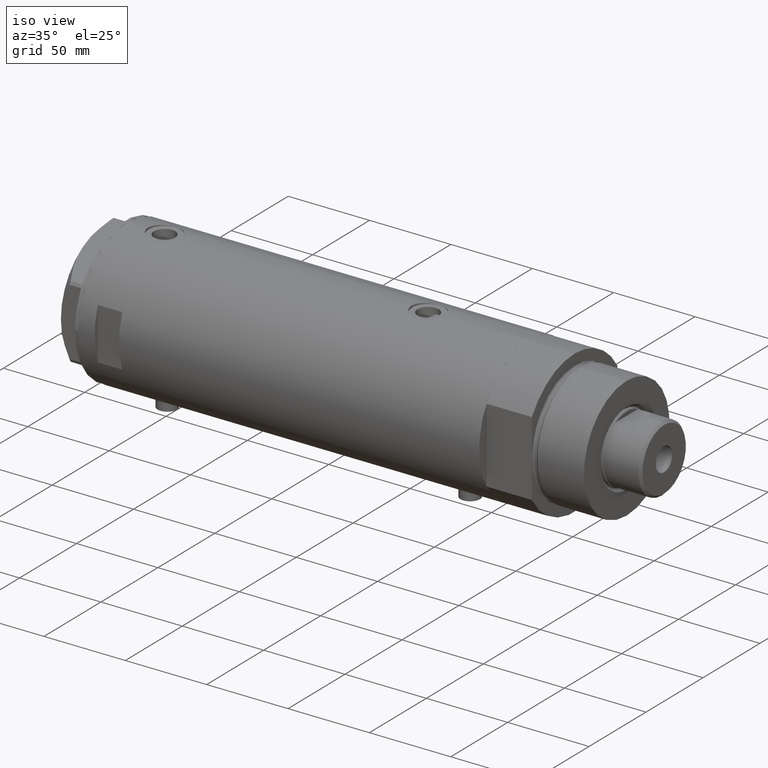
[diagram: clean part render]
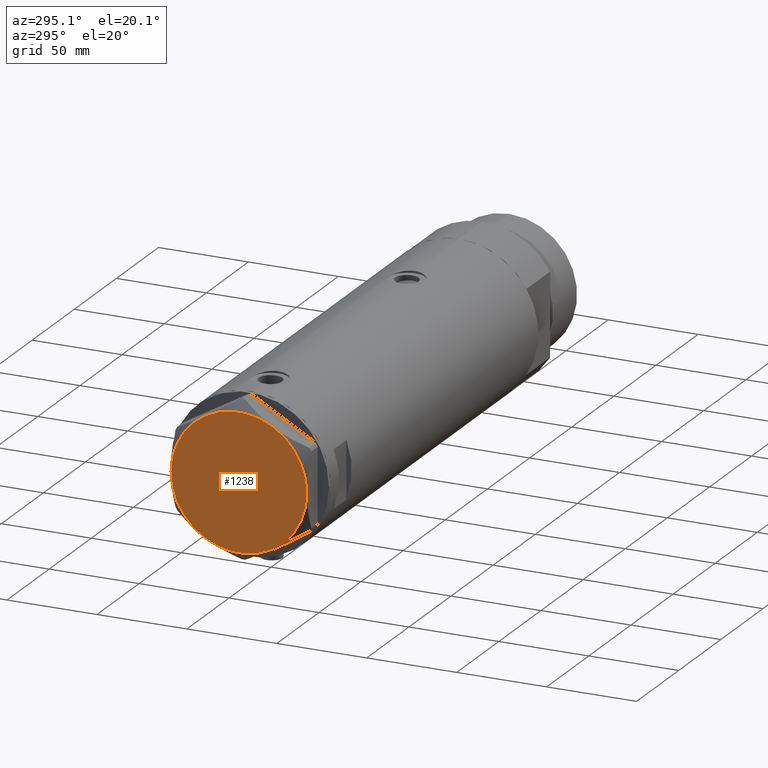
[diagram: tour spotlight — one face highlighted and labeled with its STEP entity id]
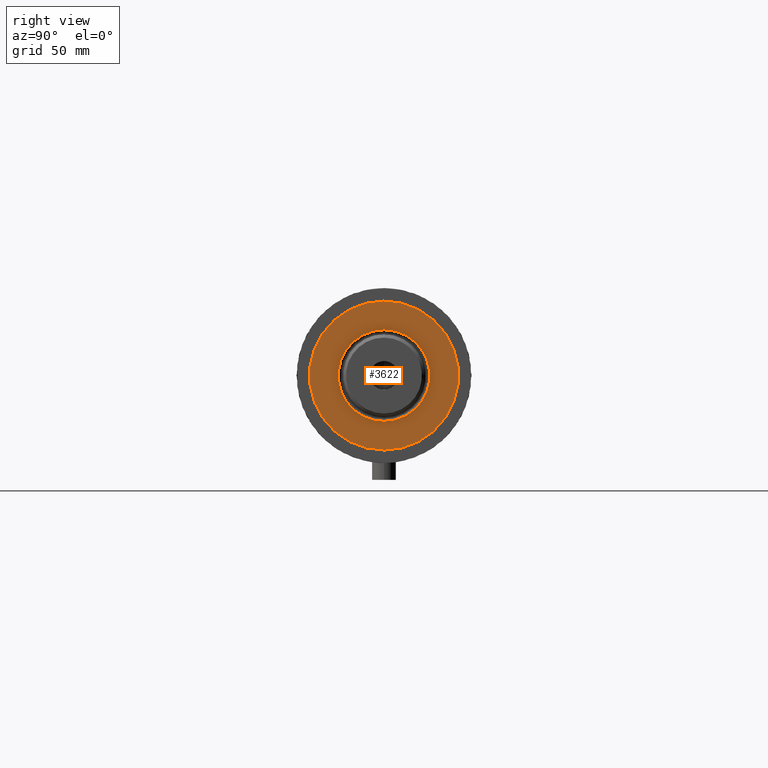
[diagram: tour spotlight — one face highlighted and labeled with its STEP entity id]
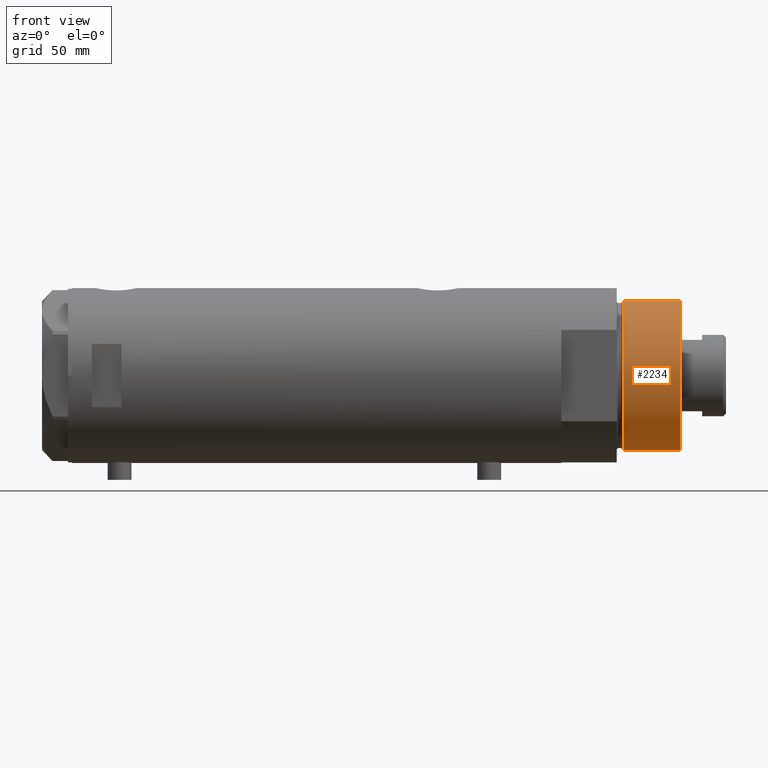
[diagram: tour spotlight — one face highlighted and labeled with its STEP entity id]
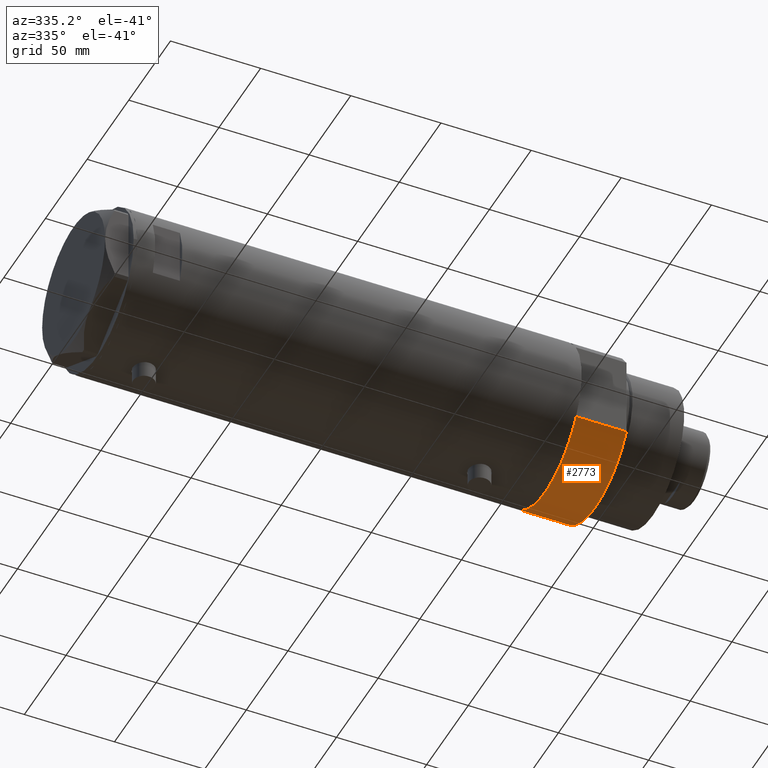
[diagram: tour spotlight — one face highlighted and labeled with its STEP entity id]
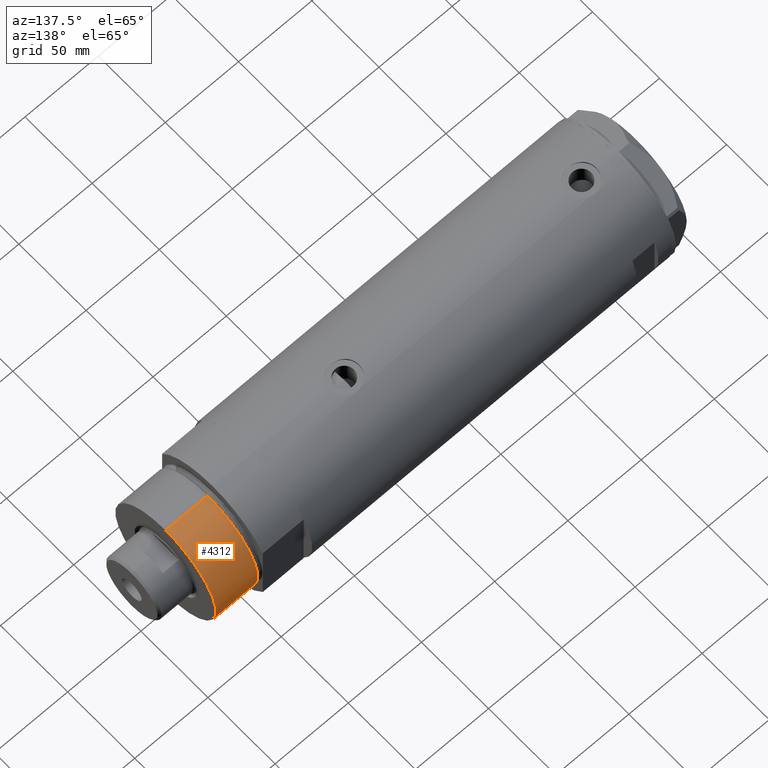
[diagram: tour spotlight — one face highlighted and labeled with its STEP entity id]
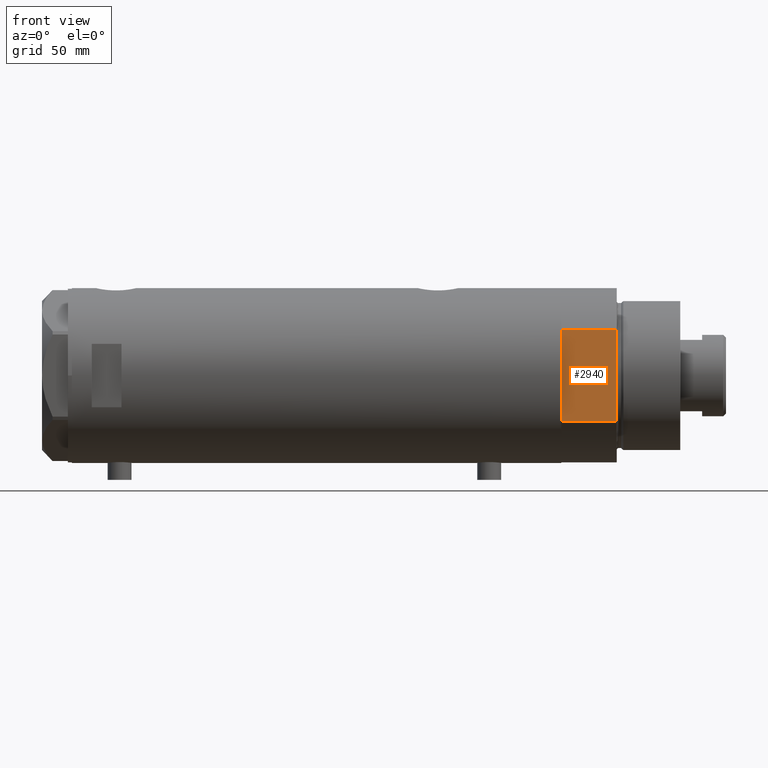
[diagram: tour spotlight — one face highlighted and labeled with its STEP entity id]
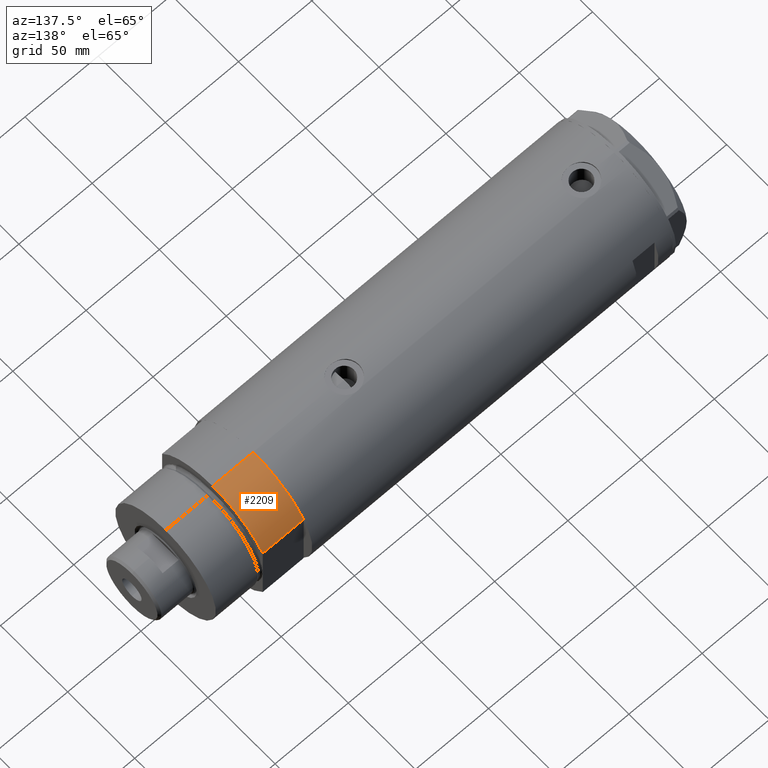
[diagram: tour spotlight — one face highlighted and labeled with its STEP entity id]
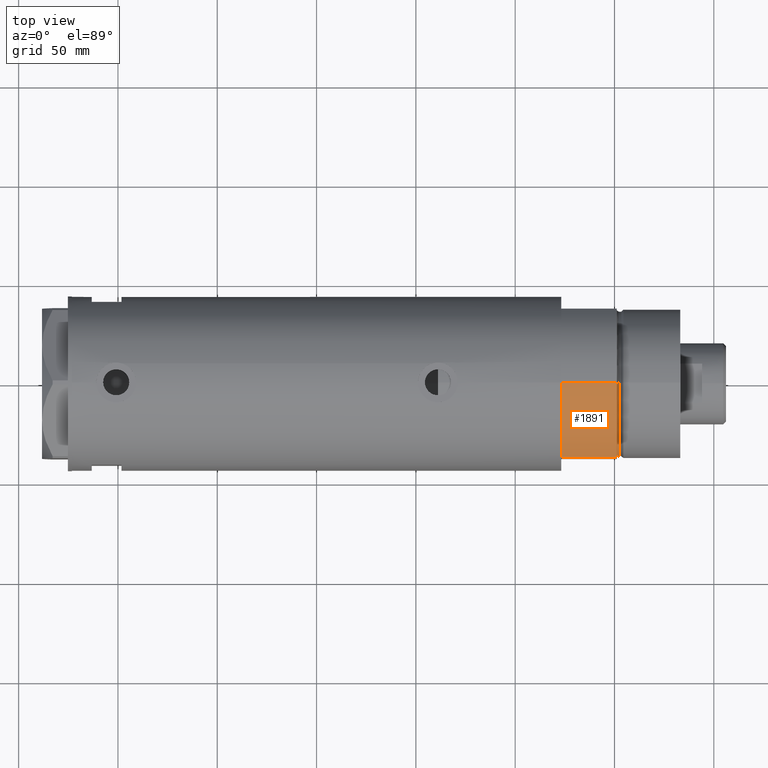
[diagram: tour spotlight — one face highlighted and labeled with its STEP entity id]
A machine part: a face-by-face anatomy tour. The part has 121 B-rep faces; the first image is the clean iso view, then the 8 largest visible faces are spotlighted one at a time (largest first), each with its STEP entity span.

Face 1 — auxiliary view, entity #1238. In plain terms, the highlighted planar face has unit normal (-1, -0, 0).
Definition (entity closure, byte-faithful):
#175 = DIRECTION ( 'NONE',  ( 1.000000000000000000, 0.000000000000000000, 0.000000000000000000 ) ) ;
#199 = CARTESIAN_POINT ( 'NONE',  ( 18.87499999999998579, -32.69245899286256218, 13.00000000000000000 ) ) ;
#270 = CIRCLE ( 'NONE', #1726, 37.75000000000000000 ) ;
#294 = ORIENTED_EDGE ( 'NONE', *, *, #2587, .T. ) ;
#336 = CARTESIAN_POINT ( 'NONE',  ( 0.000000000000000000, 0.000000000000000000, 13.00000000000000000 ) ) ;
#459 = CARTESIAN_POINT ( 'NONE',  ( 0.000000000000000000, 0.000000000000000000, 13.00000000000000000 ) ) ;
#507 = VERTEX_POINT ( 'NONE', #4430 ) ;
#514 = EDGE_CURVE ( 'NONE', #1785, #3849, #270, .T. ) ;
#608 = CARTESIAN_POINT ( 'NONE',  ( -18.87499999999999645, 32.69245899286256218, 13.00000000000000000 ) ) ;
#710 = PLANE ( 'NONE',  #3235 ) ;
#1031 = CARTESIAN_POINT ( 'NONE',  ( 0.000000000000000000, 0.000000000000000000, 13.00000000000000000 ) ) ;
#1131 = FACE_OUTER_BOUND ( 'NONE', #1402, .T. ) ;
#1142 = CARTESIAN_POINT ( 'NONE',  ( 0.000000000000000000, 0.000000000000000000, 13.00000000000000000 ) ) ;
#1238 = ADVANCED_FACE ( 'NONE', ( #1131 ), #710, .T. ) ;
#1274 = CARTESIAN_POINT ( 'NONE',  ( 0.000000000000000000, 0.000000000000000000, 13.00000000000000000 ) ) ;
#1393 = AXIS2_PLACEMENT_3D ( 'NONE', #459, #2976, #4344 ) ;
#1402 = EDGE_LOOP ( 'NONE', ( #2855, #294, #2966, #2161, #2669, #3509 ) ) ;
#1549 = AXIS2_PLACEMENT_3D ( 'NONE', #1031, #3847, #1577 ) ;
#1577 = DIRECTION ( 'NONE',  ( 1.000000000000000000, 0.000000000000000000, 0.000000000000000000 ) ) ;
#1697 = VERTEX_POINT ( 'NONE', #2648 ) ;
#1726 = AXIS2_PLACEMENT_3D ( 'NONE', #1274, #2689, #4082 ) ;
#1732 = DIRECTION ( 'NONE',  ( 1.000000000000000000, 0.000000000000000000, -0.000000000000000000 ) ) ;
#1769 = EDGE_CURVE ( 'NONE', #3849, #1821, #4258, .T. ) ;
#1785 = VERTEX_POINT ( 'NONE', #3008 ) ;
#1808 = DIRECTION ( 'NONE',  ( 0.000000000000000000, 0.000000000000000000, 1.000000000000000000 ) ) ;
#1821 = VERTEX_POINT ( 'NONE', #4514 ) ;
#2123 = CIRCLE ( 'NONE', #3820, 37.75000000000000000 ) ;
#2161 = ORIENTED_EDGE ( 'NONE', *, *, #1769, .T. ) ;
#2433 = AXIS2_PLACEMENT_3D ( 'NONE', #3705, #3057, #3358 ) ;
#2575 = AXIS2_PLACEMENT_3D ( 'NONE', #4016, #4095, #3353 ) ;
#2587 = EDGE_CURVE ( 'NONE', #1697, #1785, #2123, .T. ) ;
#2648 = CARTESIAN_POINT ( 'NONE',  ( 37.75000000000000711, 1.802777518484591547E-14, 13.00000000000000000 ) ) ;
#2669 = ORIENTED_EDGE ( 'NONE', *, *, #3780, .T. ) ;
#2689 = DIRECTION ( 'NONE',  ( 0.000000000000000000, 0.000000000000000000, 1.000000000000000000 ) ) ;
#2855 = ORIENTED_EDGE ( 'NONE', *, *, #3861, .T. ) ;
#2966 = ORIENTED_EDGE ( 'NONE', *, *, #514, .T. ) ;
#2976 = DIRECTION ( 'NONE',  ( 0.000000000000000000, 0.000000000000000000, 1.000000000000000000 ) ) ;
#3008 = CARTESIAN_POINT ( 'NONE',  ( 18.87500000000000000, 32.69245899286255508, 13.00000000000000000 ) ) ;
#3057 = DIRECTION ( 'NONE',  ( 0.000000000000000000, 0.000000000000000000, 1.000000000000000000 ) ) ;
#3235 = AXIS2_PLACEMENT_3D ( 'NONE', #336, #1808, #1732 ) ;
#3353 = DIRECTION ( 'NONE',  ( 1.000000000000000000, 0.000000000000000000, 0.000000000000000000 ) ) ;
#3358 = DIRECTION ( 'NONE',  ( 1.000000000000000000, 0.000000000000000000, 0.000000000000000000 ) ) ;
#3509 = ORIENTED_EDGE ( 'NONE', *, *, #4340, .T. ) ;
#3617 = CIRCLE ( 'NONE', #2433, 37.75000000000000000 ) ;
#3705 = CARTESIAN_POINT ( 'NONE',  ( 0.000000000000000000, 0.000000000000000000, 13.00000000000000000 ) ) ;
#3755 = CIRCLE ( 'NONE', #1393, 37.75000000000000000 ) ;
#3780 = EDGE_CURVE ( 'NONE', #1821, #507, #3755, .T. ) ;
#3820 = AXIS2_PLACEMENT_3D ( 'NONE', #1142, #4377, #175 ) ;
#3847 = DIRECTION ( 'NONE',  ( 0.000000000000000000, 0.000000000000000000, 1.000000000000000000 ) ) ;
#3849 = VERTEX_POINT ( 'NONE', #608 ) ;
#3861 = EDGE_CURVE ( 'NONE', #3875, #1697, #3617, .T. ) ;
#3875 = VERTEX_POINT ( 'NONE', #199 ) ;
#3910 = CIRCLE ( 'NONE', #1549, 37.75000000000000000 ) ;
#4016 = CARTESIAN_POINT ( 'NONE',  ( 0.000000000000000000, 0.000000000000000000, 13.00000000000000000 ) ) ;
#4082 = DIRECTION ( 'NONE',  ( 1.000000000000000000, 0.000000000000000000, 0.000000000000000000 ) ) ;
#4095 = DIRECTION ( 'NONE',  ( 0.000000000000000000, 0.000000000000000000, 1.000000000000000000 ) ) ;
#4258 = CIRCLE ( 'NONE', #2575, 37.75000000000000000 ) ;
#4340 = EDGE_CURVE ( 'NONE', #507, #3875, #3910, .T. ) ;
#4344 = DIRECTION ( 'NONE',  ( 1.000000000000000000, 0.000000000000000000, 0.000000000000000000 ) ) ;
#4377 = DIRECTION ( 'NONE',  ( 0.000000000000000000, 0.000000000000000000, 1.000000000000000000 ) ) ;
#4430 = CARTESIAN_POINT ( 'NONE',  ( -18.87499999999999645, -32.69245899286255508, 13.00000000000000000 ) ) ;
#4514 = CARTESIAN_POINT ( 'NONE',  ( -37.75000000000000000, -1.201851678989727067E-14, 13.00000000000000000 ) ) ;

Face 2 — right view, entity #3622. In plain terms, the highlighted planar face has unit normal (1, 0, -0).
Definition (entity closure, byte-faithful):
#60 = DIRECTION ( 'NONE',  ( 1.000000000000000000, 0.000000000000000000, 0.000000000000000000 ) ) ;
#185 = CARTESIAN_POINT ( 'NONE',  ( 0.000000000000000000, 0.000000000000000000, 59.89999999999999147 ) ) ;
#544 = EDGE_CURVE ( 'NONE', #2652, #3191, #2401, .T. ) ;
#680 = CARTESIAN_POINT ( 'NONE',  ( -23.05000000000002913, 2.822810872034651791E-15, 59.89999999999999147 ) ) ;
#885 = CARTESIAN_POINT ( 'NONE',  ( 37.50000000000000711, 4.592425496802575156E-15, 59.89999999999999147 ) ) ;
#1409 = EDGE_LOOP ( 'NONE', ( #3630, #2248 ) ) ;
#1469 = AXIS2_PLACEMENT_3D ( 'NONE', #185, #3198, #60 ) ;
#1721 = ORIENTED_EDGE ( 'NONE', *, *, #2716, .T. ) ;
#2027 = DIRECTION ( 'NONE',  ( -0.000000000000000000, -0.000000000000000000, -1.000000000000000000 ) ) ;
#2055 = CIRCLE ( 'NONE', #4114, 23.05000000000002913 ) ;
#2059 = AXIS2_PLACEMENT_3D ( 'NONE', #4432, #3037, #3789 ) ;
#2062 = DIRECTION ( 'NONE',  ( 0.000000000000000000, 0.000000000000000000, 1.000000000000000000 ) ) ;
#2248 = ORIENTED_EDGE ( 'NONE', *, *, #544, .T. ) ;
#2309 = VERTEX_POINT ( 'NONE', #680 ) ;
#2342 = DIRECTION ( 'NONE',  ( 1.000000000000000000, 0.000000000000000000, 0.000000000000000000 ) ) ;
#2401 = CIRCLE ( 'NONE', #4022, 37.50000000000000711 ) ;
#2468 = PLANE ( 'NONE',  #4479 ) ;
#2472 = CARTESIAN_POINT ( 'NONE',  ( -37.50000000000000711, 0.000000000000000000, 59.89999999999999147 ) ) ;
#2652 = VERTEX_POINT ( 'NONE', #885 ) ;
#2716 = EDGE_CURVE ( 'NONE', #3571, #2309, #3672, .T. ) ;
#2732 = DIRECTION ( 'NONE',  ( 1.000000000000000000, 0.000000000000000000, 0.000000000000000000 ) ) ;
#2752 = CARTESIAN_POINT ( 'NONE',  ( 0.000000000000000000, 0.000000000000000000, 59.89999999999999147 ) ) ;
#3037 = DIRECTION ( 'NONE',  ( 0.000000000000000000, 0.000000000000000000, 1.000000000000000000 ) ) ;
#3120 = EDGE_LOOP ( 'NONE', ( #1721, #3686 ) ) ;
#3183 = CARTESIAN_POINT ( 'NONE',  ( 0.000000000000000000, 0.000000000000000000, 59.89999999999999147 ) ) ;
#3191 = VERTEX_POINT ( 'NONE', #2472 ) ;
#3198 = DIRECTION ( 'NONE',  ( -0.000000000000000000, -0.000000000000000000, -1.000000000000000000 ) ) ;
#3571 = VERTEX_POINT ( 'NONE', #3936 ) ;
#3622 = ADVANCED_FACE ( 'NONE', ( #3917, #4549 ), #2468, .T. ) ;
#3630 = ORIENTED_EDGE ( 'NONE', *, *, #4505, .T. ) ;
#3672 = CIRCLE ( 'NONE', #1469, 23.05000000000002913 ) ;
#3686 = ORIENTED_EDGE ( 'NONE', *, *, #3929, .T. ) ;
#3789 = DIRECTION ( 'NONE',  ( 1.000000000000000000, 0.000000000000000000, 0.000000000000000000 ) ) ;
#3834 = CIRCLE ( 'NONE', #2059, 37.50000000000000711 ) ;
#3879 = DIRECTION ( 'NONE',  ( 0.000000000000000000, 0.000000000000000000, 1.000000000000000000 ) ) ;
#3917 = FACE_BOUND ( 'NONE', #3120, .T. ) ;
#3929 = EDGE_CURVE ( 'NONE', #2309, #3571, #2055, .T. ) ;
#3936 = CARTESIAN_POINT ( 'NONE',  ( 23.05000000000002913, 0.000000000000000000, 59.89999999999999147 ) ) ;
#4022 = AXIS2_PLACEMENT_3D ( 'NONE', #2752, #3879, #2732 ) ;
#4114 = AXIS2_PLACEMENT_3D ( 'NONE', #4410, #2027, #2342 ) ;
#4181 = DIRECTION ( 'NONE',  ( 1.000000000000000000, 0.000000000000000000, -0.000000000000000000 ) ) ;
#4410 = CARTESIAN_POINT ( 'NONE',  ( 0.000000000000000000, 0.000000000000000000, 59.89999999999999147 ) ) ;
#4432 = CARTESIAN_POINT ( 'NONE',  ( 0.000000000000000000, 0.000000000000000000, 59.89999999999999147 ) ) ;
#4479 = AXIS2_PLACEMENT_3D ( 'NONE', #3183, #2062, #4181 ) ;
#4505 = EDGE_CURVE ( 'NONE', #3191, #2652, #3834, .T. ) ;
#4549 = FACE_OUTER_BOUND ( 'NONE', #1409, .T. ) ;

Face 3 — front view, entity #2234. In plain terms, the highlighted cylindrical surface (partial cylindrical patch) has radius 37.5 mm, axis along (-1, -0, 0).
Definition (entity closure, byte-faithful):
#126 = LINE ( 'NONE', #1588, #581 ) ;
#324 = ORIENTED_EDGE ( 'NONE', *, *, #1192, .T. ) ;
#352 = CIRCLE ( 'NONE', #1662, 37.50000000000000711 ) ;
#548 = CARTESIAN_POINT ( 'NONE',  ( 0.000000000000000000, 0.000000000000000000, 59.89999999999999147 ) ) ;
#581 = VECTOR ( 'NONE', #2642, 1000.000000000000000 ) ;
#761 = DIRECTION ( 'NONE',  ( -0.000000000000000000, -0.000000000000000000, -1.000000000000000000 ) ) ;
#878 = EDGE_LOOP ( 'NONE', ( #2176, #1196, #324, #2381 ) ) ;
#885 = CARTESIAN_POINT ( 'NONE',  ( 37.50000000000000711, 4.592425496802575156E-15, 59.89999999999999147 ) ) ;
#975 = DIRECTION ( 'NONE',  ( -1.000000000000000000, 0.000000000000000000, 0.000000000000000000 ) ) ;
#1192 = EDGE_CURVE ( 'NONE', #3191, #2895, #4303, .T. ) ;
#1196 = ORIENTED_EDGE ( 'NONE', *, *, #4505, .F. ) ;
#1580 = FACE_OUTER_BOUND ( 'NONE', #878, .T. ) ;
#1588 = CARTESIAN_POINT ( 'NONE',  ( 37.50000000000000711, 4.592425496802575156E-15, 59.89999999999999147 ) ) ;
#1613 = DIRECTION ( 'NONE',  ( 1.000000000000000000, 0.000000000000000000, 0.000000000000000000 ) ) ;
#1662 = AXIS2_PLACEMENT_3D ( 'NONE', #2272, #4404, #1613 ) ;
#1693 = VERTEX_POINT ( 'NONE', #3698 ) ;
#1793 = EDGE_CURVE ( 'NONE', #2895, #1693, #352, .T. ) ;
#1898 = AXIS2_PLACEMENT_3D ( 'NONE', #548, #3362, #975 ) ;
#1971 = CARTESIAN_POINT ( 'NONE',  ( -37.50000000000000711, 0.000000000000000000, 31.27384048104054415 ) ) ;
#2059 = AXIS2_PLACEMENT_3D ( 'NONE', #4432, #3037, #3789 ) ;
#2176 = ORIENTED_EDGE ( 'NONE', *, *, #3081, .F. ) ;
#2234 = ADVANCED_FACE ( 'NONE', ( #1580 ), #2994, .T. ) ;
#2272 = CARTESIAN_POINT ( 'NONE',  ( 0.000000000000000000, 0.000000000000000000, 31.27384048104054415 ) ) ;
#2381 = ORIENTED_EDGE ( 'NONE', *, *, #1793, .T. ) ;
#2472 = CARTESIAN_POINT ( 'NONE',  ( -37.50000000000000711, 0.000000000000000000, 59.89999999999999147 ) ) ;
#2642 = DIRECTION ( 'NONE',  ( -0.000000000000000000, -0.000000000000000000, -1.000000000000000000 ) ) ;
#2652 = VERTEX_POINT ( 'NONE', #885 ) ;
#2895 = VERTEX_POINT ( 'NONE', #1971 ) ;
#2994 = CYLINDRICAL_SURFACE ( 'NONE', #1898, 37.50000000000000711 ) ;
#3037 = DIRECTION ( 'NONE',  ( 0.000000000000000000, 0.000000000000000000, 1.000000000000000000 ) ) ;
#3081 = EDGE_CURVE ( 'NONE', #2652, #1693, #126, .T. ) ;
#3191 = VERTEX_POINT ( 'NONE', #2472 ) ;
#3362 = DIRECTION ( 'NONE',  ( -0.000000000000000000, -0.000000000000000000, -1.000000000000000000 ) ) ;
#3598 = CARTESIAN_POINT ( 'NONE',  ( -37.50000000000000711, 0.000000000000000000, 59.89999999999999147 ) ) ;
#3698 = CARTESIAN_POINT ( 'NONE',  ( 37.50000000000000711, 4.592425496802575156E-15, 31.27384048104054415 ) ) ;
#3789 = DIRECTION ( 'NONE',  ( 1.000000000000000000, 0.000000000000000000, 0.000000000000000000 ) ) ;
#3834 = CIRCLE ( 'NONE', #2059, 37.50000000000000711 ) ;
#3880 = VECTOR ( 'NONE', #761, 1000.000000000000000 ) ;
#4303 = LINE ( 'NONE', #3598, #3880 ) ;
#4404 = DIRECTION ( 'NONE',  ( -0.000000000000000000, -0.000000000000000000, 1.000000000000000000 ) ) ;
#4432 = CARTESIAN_POINT ( 'NONE',  ( 0.000000000000000000, 0.000000000000000000, 59.89999999999999147 ) ) ;
#4505 = EDGE_CURVE ( 'NONE', #3191, #2652, #3834, .T. ) ;

Face 4 — auxiliary view, entity #2773. In plain terms, the highlighted cylindrical surface (partial cylindrical patch) has radius 44 mm, axis along (-1, -0, 0).
Definition (entity closure, byte-faithful):
#51 = ORIENTED_EDGE ( 'NONE', *, *, #2547, .T. ) ;
#78 = AXIS2_PLACEMENT_3D ( 'NONE', #3677, #2151, #2552 ) ;
#169 = CARTESIAN_POINT ( 'NONE',  ( 0.000000000000000000, 0.000000000000000000, 27.89999999999999858 ) ) ;
#267 = VERTEX_POINT ( 'NONE', #2831 ) ;
#506 = CARTESIAN_POINT ( 'NONE',  ( 23.01629857296780557, 37.50000000000000000, 0.000000000000000000 ) ) ;
#572 = VECTOR ( 'NONE', #1906, 1000.000000000000000 ) ;
#582 = VECTOR ( 'NONE', #4392, 1000.000000000000000 ) ;
#689 = DIRECTION ( 'NONE',  ( 0.000000000000000000, 0.000000000000000000, 1.000000000000000000 ) ) ;
#837 = LINE ( 'NONE', #4028, #582 ) ;
#1371 = EDGE_CURVE ( 'NONE', #2203, #1849, #4024, .T. ) ;
#1477 = ORIENTED_EDGE ( 'NONE', *, *, #3259, .F. ) ;
#1491 = EDGE_LOOP ( 'NONE', ( #1477, #3465, #51, #2286 ) ) ;
#1538 = CIRCLE ( 'NONE', #78, 44.00000000000000000 ) ;
#1849 = VERTEX_POINT ( 'NONE', #4314 ) ;
#1906 = DIRECTION ( 'NONE',  ( -0.000000000000000000, -0.000000000000000000, 1.000000000000000000 ) ) ;
#2151 = DIRECTION ( 'NONE',  ( 0.000000000000000000, 0.000000000000000000, 1.000000000000000000 ) ) ;
#2203 = VERTEX_POINT ( 'NONE', #3241 ) ;
#2217 = DIRECTION ( 'NONE',  ( -0.000000000000000000, -0.000000000000000000, -1.000000000000000000 ) ) ;
#2286 = ORIENTED_EDGE ( 'NONE', *, *, #1371, .T. ) ;
#2448 = VERTEX_POINT ( 'NONE', #3277 ) ;
#2540 = DIRECTION ( 'NONE',  ( 1.000000000000000000, 0.000000000000000000, 0.000000000000000000 ) ) ;
#2547 = EDGE_CURVE ( 'NONE', #2448, #2203, #1538, .T. ) ;
#2552 = DIRECTION ( 'NONE',  ( 1.000000000000000000, 0.000000000000000000, 0.000000000000000000 ) ) ;
#2588 = CIRCLE ( 'NONE', #2663, 44.00000000000000000 ) ;
#2663 = AXIS2_PLACEMENT_3D ( 'NONE', #3850, #689, #2540 ) ;
#2773 = ADVANCED_FACE ( 'NONE', ( #4391 ), #2910, .T. ) ;
#2831 = CARTESIAN_POINT ( 'NONE',  ( 23.01629857296780557, -37.50000000000000000, 27.89999999999999858 ) ) ;
#2910 = CYLINDRICAL_SURFACE ( 'NONE', #4548, 44.00000000000000000 ) ;
#3241 = CARTESIAN_POINT ( 'NONE',  ( 23.01629857296780557, 37.50000000000000000, 0.000000000000000000 ) ) ;
#3259 = EDGE_CURVE ( 'NONE', #267, #1849, #2588, .T. ) ;
#3277 = CARTESIAN_POINT ( 'NONE',  ( 23.01629857296780557, -37.50000000000000000, 0.000000000000000000 ) ) ;
#3327 = DIRECTION ( 'NONE',  ( -1.000000000000000000, 0.000000000000000000, 0.000000000000000000 ) ) ;
#3336 = EDGE_CURVE ( 'NONE', #2448, #267, #837, .T. ) ;
#3465 = ORIENTED_EDGE ( 'NONE', *, *, #3336, .F. ) ;
#3677 = CARTESIAN_POINT ( 'NONE',  ( 0.000000000000000000, 0.000000000000000000, 0.000000000000000000 ) ) ;
#3850 = CARTESIAN_POINT ( 'NONE',  ( 0.000000000000000000, 0.000000000000000000, 27.89999999999999858 ) ) ;
#4024 = LINE ( 'NONE', #506, #572 ) ;
#4028 = CARTESIAN_POINT ( 'NONE',  ( 23.01629857296780557, -37.50000000000000000, 0.000000000000000000 ) ) ;
#4314 = CARTESIAN_POINT ( 'NONE',  ( 23.01629857296780557, 37.50000000000000000, 27.89999999999999858 ) ) ;
#4391 = FACE_OUTER_BOUND ( 'NONE', #1491, .T. ) ;
#4392 = DIRECTION ( 'NONE',  ( -0.000000000000000000, -0.000000000000000000, 1.000000000000000000 ) ) ;
#4548 = AXIS2_PLACEMENT_3D ( 'NONE', #169, #2217, #3327 ) ;

Face 5 — auxiliary view, entity #4312. In plain terms, the highlighted cylindrical surface (partial cylindrical patch) has radius 37.5 mm, axis along (-1, -0, 0).
Definition (entity closure, byte-faithful):
#47 = FACE_OUTER_BOUND ( 'NONE', #1783, .T. ) ;
#126 = LINE ( 'NONE', #1588, #581 ) ;
#374 = AXIS2_PLACEMENT_3D ( 'NONE', #1448, #411, #2860 ) ;
#411 = DIRECTION ( 'NONE',  ( -0.000000000000000000, -0.000000000000000000, -1.000000000000000000 ) ) ;
#513 = AXIS2_PLACEMENT_3D ( 'NONE', #3188, #1080, #3263 ) ;
#544 = EDGE_CURVE ( 'NONE', #2652, #3191, #2401, .T. ) ;
#581 = VECTOR ( 'NONE', #2642, 1000.000000000000000 ) ;
#761 = DIRECTION ( 'NONE',  ( -0.000000000000000000, -0.000000000000000000, -1.000000000000000000 ) ) ;
#885 = CARTESIAN_POINT ( 'NONE',  ( 37.50000000000000711, 4.592425496802575156E-15, 59.89999999999999147 ) ) ;
#1080 = DIRECTION ( 'NONE',  ( -0.000000000000000000, -0.000000000000000000, 1.000000000000000000 ) ) ;
#1192 = EDGE_CURVE ( 'NONE', #3191, #2895, #4303, .T. ) ;
#1448 = CARTESIAN_POINT ( 'NONE',  ( 0.000000000000000000, 0.000000000000000000, 59.89999999999999147 ) ) ;
#1588 = CARTESIAN_POINT ( 'NONE',  ( 37.50000000000000711, 4.592425496802575156E-15, 59.89999999999999147 ) ) ;
#1671 = ORIENTED_EDGE ( 'NONE', *, *, #1192, .F. ) ;
#1693 = VERTEX_POINT ( 'NONE', #3698 ) ;
#1783 = EDGE_LOOP ( 'NONE', ( #4223, #3443, #4465, #1671 ) ) ;
#1971 = CARTESIAN_POINT ( 'NONE',  ( -37.50000000000000711, 0.000000000000000000, 31.27384048104054415 ) ) ;
#2185 = CYLINDRICAL_SURFACE ( 'NONE', #374, 37.50000000000000711 ) ;
#2401 = CIRCLE ( 'NONE', #4022, 37.50000000000000711 ) ;
#2472 = CARTESIAN_POINT ( 'NONE',  ( -37.50000000000000711, 0.000000000000000000, 59.89999999999999147 ) ) ;
#2642 = DIRECTION ( 'NONE',  ( -0.000000000000000000, -0.000000000000000000, -1.000000000000000000 ) ) ;
#2652 = VERTEX_POINT ( 'NONE', #885 ) ;
#2732 = DIRECTION ( 'NONE',  ( 1.000000000000000000, 0.000000000000000000, 0.000000000000000000 ) ) ;
#2752 = CARTESIAN_POINT ( 'NONE',  ( 0.000000000000000000, 0.000000000000000000, 59.89999999999999147 ) ) ;
#2860 = DIRECTION ( 'NONE',  ( -1.000000000000000000, 0.000000000000000000, 0.000000000000000000 ) ) ;
#2895 = VERTEX_POINT ( 'NONE', #1971 ) ;
#3081 = EDGE_CURVE ( 'NONE', #2652, #1693, #126, .T. ) ;
#3090 = CIRCLE ( 'NONE', #513, 37.50000000000000711 ) ;
#3188 = CARTESIAN_POINT ( 'NONE',  ( 0.000000000000000000, 0.000000000000000000, 31.27384048104054415 ) ) ;
#3191 = VERTEX_POINT ( 'NONE', #2472 ) ;
#3194 = EDGE_CURVE ( 'NONE', #1693, #2895, #3090, .T. ) ;
#3263 = DIRECTION ( 'NONE',  ( 1.000000000000000000, 0.000000000000000000, 0.000000000000000000 ) ) ;
#3443 = ORIENTED_EDGE ( 'NONE', *, *, #3081, .T. ) ;
#3598 = CARTESIAN_POINT ( 'NONE',  ( -37.50000000000000711, 0.000000000000000000, 59.89999999999999147 ) ) ;
#3698 = CARTESIAN_POINT ( 'NONE',  ( 37.50000000000000711, 4.592425496802575156E-15, 31.27384048104054415 ) ) ;
#3879 = DIRECTION ( 'NONE',  ( 0.000000000000000000, 0.000000000000000000, 1.000000000000000000 ) ) ;
#3880 = VECTOR ( 'NONE', #761, 1000.000000000000000 ) ;
#4022 = AXIS2_PLACEMENT_3D ( 'NONE', #2752, #3879, #2732 ) ;
#4223 = ORIENTED_EDGE ( 'NONE', *, *, #544, .F. ) ;
#4303 = LINE ( 'NONE', #3598, #3880 ) ;
#4312 = ADVANCED_FACE ( 'NONE', ( #47 ), #2185, .T. ) ;
#4465 = ORIENTED_EDGE ( 'NONE', *, *, #3194, .T. ) ;

Face 6 — front view, entity #2940. In plain terms, the highlighted planar face has unit normal (-0, 1, 0).
Definition (entity closure, byte-faithful):
#12 = EDGE_CURVE ( 'NONE', #2041, #3948, #4086, .T. ) ;
#42 = VERTEX_POINT ( 'NONE', #1260 ) ;
#267 = VERTEX_POINT ( 'NONE', #2831 ) ;
#273 = VECTOR ( 'NONE', #2561, 1000.000000000000000 ) ;
#335 = VECTOR ( 'NONE', #3361, 1000.000000000000000 ) ;
#443 = EDGE_LOOP ( 'NONE', ( #2395, #618, #2660, #1430, #1082, #3006, #643 ) ) ;
#582 = VECTOR ( 'NONE', #4392, 1000.000000000000000 ) ;
#617 = LINE ( 'NONE', #2764, #3734 ) ;
#618 = ORIENTED_EDGE ( 'NONE', *, *, #3025, .T. ) ;
#642 = CARTESIAN_POINT ( 'NONE',  ( 0.000000000000000000, -37.50000000000000000, 27.89999999999999858 ) ) ;
#643 = ORIENTED_EDGE ( 'NONE', *, *, #3336, .T. ) ;
#658 = CARTESIAN_POINT ( 'NONE',  ( -23.01629857296780557, -37.50000000000000000, 27.89999999999999858 ) ) ;
#705 = LINE ( 'NONE', #658, #3823 ) ;
#824 = CARTESIAN_POINT ( 'NONE',  ( -23.01629857296780557, -37.50000000000000000, 0.000000000000000000 ) ) ;
#837 = LINE ( 'NONE', #4028, #582 ) ;
#890 = CARTESIAN_POINT ( 'NONE',  ( -13.91941090707505957, -37.50000000000000000, 0.000000000000000000 ) ) ;
#958 = PLANE ( 'NONE',  #3016 ) ;
#1018 = VECTOR ( 'NONE', #1444, 1000.000000000000000 ) ;
#1082 = ORIENTED_EDGE ( 'NONE', *, *, #1213, .F. ) ;
#1106 = EDGE_CURVE ( 'NONE', #267, #2004, #617, .T. ) ;
#1188 = LINE ( 'NONE', #824, #2709 ) ;
#1213 = EDGE_CURVE ( 'NONE', #42, #2471, #1500, .T. ) ;
#1260 = CARTESIAN_POINT ( 'NONE',  ( 13.91941090707505957, -37.50000000000000000, 0.000000000000000000 ) ) ;
#1299 = DIRECTION ( 'NONE',  ( 0.000000000000000000, -0.000000000000000000, 1.000000000000000000 ) ) ;
#1419 = DIRECTION ( 'NONE',  ( -1.000000000000000000, -0.000000000000000000, -0.000000000000000000 ) ) ;
#1430 = ORIENTED_EDGE ( 'NONE', *, *, #1572, .F. ) ;
#1444 = DIRECTION ( 'NONE',  ( -1.000000000000000000, -0.000000000000000000, -0.000000000000000000 ) ) ;
#1500 = LINE ( 'NONE', #2863, #273 ) ;
#1572 = EDGE_CURVE ( 'NONE', #2471, #2041, #1188, .T. ) ;
#1657 = FACE_OUTER_BOUND ( 'NONE', #443, .T. ) ;
#2004 = VERTEX_POINT ( 'NONE', #642 ) ;
#2041 = VERTEX_POINT ( 'NONE', #4189 ) ;
#2061 = CARTESIAN_POINT ( 'NONE',  ( -23.01629857296780557, -37.50000000000000000, 0.000000000000000000 ) ) ;
#2175 = DIRECTION ( 'NONE',  ( -1.000000000000000000, -0.000000000000000000, -0.000000000000000000 ) ) ;
#2395 = ORIENTED_EDGE ( 'NONE', *, *, #1106, .T. ) ;
#2448 = VERTEX_POINT ( 'NONE', #3277 ) ;
#2471 = VERTEX_POINT ( 'NONE', #890 ) ;
#2561 = DIRECTION ( 'NONE',  ( -1.000000000000000000, -0.000000000000000000, -0.000000000000000000 ) ) ;
#2660 = ORIENTED_EDGE ( 'NONE', *, *, #12, .F. ) ;
#2709 = VECTOR ( 'NONE', #2175, 1000.000000000000000 ) ;
#2764 = CARTESIAN_POINT ( 'NONE',  ( -23.01629857296780557, -37.50000000000000000, 27.89999999999999858 ) ) ;
#2806 = CARTESIAN_POINT ( 'NONE',  ( -23.01629857296780557, -37.50000000000000000, 27.89999999999999858 ) ) ;
#2831 = CARTESIAN_POINT ( 'NONE',  ( 23.01629857296780557, -37.50000000000000000, 27.89999999999999858 ) ) ;
#2863 = CARTESIAN_POINT ( 'NONE',  ( -23.01629857296780557, -37.50000000000000000, 0.000000000000000000 ) ) ;
#2940 = ADVANCED_FACE ( 'NONE', ( #1657 ), #958, .F. ) ;
#3006 = ORIENTED_EDGE ( 'NONE', *, *, #3028, .F. ) ;
#3016 = AXIS2_PLACEMENT_3D ( 'NONE', #4437, #3450, #1299 ) ;
#3025 = EDGE_CURVE ( 'NONE', #2004, #3948, #705, .T. ) ;
#3028 = EDGE_CURVE ( 'NONE', #2448, #42, #4502, .T. ) ;
#3277 = CARTESIAN_POINT ( 'NONE',  ( 23.01629857296780557, -37.50000000000000000, 0.000000000000000000 ) ) ;
#3336 = EDGE_CURVE ( 'NONE', #2448, #267, #837, .T. ) ;
#3361 = DIRECTION ( 'NONE',  ( -0.000000000000000000, -0.000000000000000000, 1.000000000000000000 ) ) ;
#3434 = DIRECTION ( 'NONE',  ( -1.000000000000000000, -0.000000000000000000, -0.000000000000000000 ) ) ;
#3450 = DIRECTION ( 'NONE',  ( -0.000000000000000000, 1.000000000000000000, 0.000000000000000000 ) ) ;
#3707 = CARTESIAN_POINT ( 'NONE',  ( -23.01629857296780557, -37.50000000000000000, 0.000000000000000000 ) ) ;
#3734 = VECTOR ( 'NONE', #3434, 1000.000000000000000 ) ;
#3823 = VECTOR ( 'NONE', #1419, 1000.000000000000000 ) ;
#3948 = VERTEX_POINT ( 'NONE', #2806 ) ;
#4028 = CARTESIAN_POINT ( 'NONE',  ( 23.01629857296780557, -37.50000000000000000, 0.000000000000000000 ) ) ;
#4086 = LINE ( 'NONE', #3707, #335 ) ;
#4189 = CARTESIAN_POINT ( 'NONE',  ( -23.01629857296780557, -37.50000000000000000, 0.000000000000000000 ) ) ;
#4392 = DIRECTION ( 'NONE',  ( -0.000000000000000000, -0.000000000000000000, 1.000000000000000000 ) ) ;
#4437 = CARTESIAN_POINT ( 'NONE',  ( -23.01629857296780557, -37.50000000000000000, 0.000000000000000000 ) ) ;
#4502 = LINE ( 'NONE', #2061, #1018 ) ;

Face 7 — auxiliary view, entity #2209. In plain terms, the highlighted cylindrical surface (partial cylindrical patch) has radius 44 mm, axis along (-1, -0, 0).
Definition (entity closure, byte-faithful):
#4 = VERTEX_POINT ( 'NONE', #3579 ) ;
#106 = VERTEX_POINT ( 'NONE', #4067 ) ;
#140 = DIRECTION ( 'NONE',  ( -0.000000000000000000, -0.000000000000000000, -1.000000000000000000 ) ) ;
#146 = AXIS2_PLACEMENT_3D ( 'NONE', #2366, #2009, #3430 ) ;
#182 = DIRECTION ( 'NONE',  ( -1.000000000000000000, 0.000000000000000000, 0.000000000000000000 ) ) ;
#354 = CIRCLE ( 'NONE', #146, 44.00000000000000000 ) ;
#356 = LINE ( 'NONE', #2852, #1666 ) ;
#1041 = ORIENTED_EDGE ( 'NONE', *, *, #2259, .F. ) ;
#1094 = DIRECTION ( 'NONE',  ( -0.000000000000000000, -0.000000000000000000, -1.000000000000000000 ) ) ;
#1134 = ORIENTED_EDGE ( 'NONE', *, *, #2894, .T. ) ;
#1666 = VECTOR ( 'NONE', #1094, 1000.000000000000000 ) ;
#1748 = VERTEX_POINT ( 'NONE', #3404 ) ;
#2009 = DIRECTION ( 'NONE',  ( 0.000000000000000000, 0.000000000000000000, 1.000000000000000000 ) ) ;
#2209 = ADVANCED_FACE ( 'NONE', ( #3708 ), #3344, .T. ) ;
#2212 = CARTESIAN_POINT ( 'NONE',  ( -44.00000000000000000, 0.000000000000000000, 27.89999999999999858 ) ) ;
#2259 = EDGE_CURVE ( 'NONE', #4, #4425, #354, .T. ) ;
#2366 = CARTESIAN_POINT ( 'NONE',  ( 0.000000000000000000, 0.000000000000000000, 27.89999999999999858 ) ) ;
#2373 = EDGE_CURVE ( 'NONE', #4425, #1748, #356, .T. ) ;
#2496 = AXIS2_PLACEMENT_3D ( 'NONE', #4267, #140, #182 ) ;
#2559 = DIRECTION ( 'NONE',  ( -0.000000000000000000, -0.000000000000000000, 1.000000000000000000 ) ) ;
#2599 = ORIENTED_EDGE ( 'NONE', *, *, #4420, .F. ) ;
#2852 = CARTESIAN_POINT ( 'NONE',  ( -44.00000000000000000, 0.000000000000000000, 27.89999999999999858 ) ) ;
#2894 = EDGE_CURVE ( 'NONE', #106, #1748, #3897, .T. ) ;
#2929 = CARTESIAN_POINT ( 'NONE',  ( -23.01629857296780557, 37.50000000000000000, 0.000000000000000000 ) ) ;
#3045 = ORIENTED_EDGE ( 'NONE', *, *, #2373, .F. ) ;
#3258 = VECTOR ( 'NONE', #2559, 1000.000000000000000 ) ;
#3344 = CYLINDRICAL_SURFACE ( 'NONE', #2496, 44.00000000000000000 ) ;
#3383 = AXIS2_PLACEMENT_3D ( 'NONE', #3388, #3432, #4481 ) ;
#3388 = CARTESIAN_POINT ( 'NONE',  ( 0.000000000000000000, 0.000000000000000000, 0.000000000000000000 ) ) ;
#3404 = CARTESIAN_POINT ( 'NONE',  ( -44.00000000000000000, 0.000000000000000000, 0.000000000000000000 ) ) ;
#3430 = DIRECTION ( 'NONE',  ( 1.000000000000000000, 0.000000000000000000, 0.000000000000000000 ) ) ;
#3432 = DIRECTION ( 'NONE',  ( 0.000000000000000000, 0.000000000000000000, 1.000000000000000000 ) ) ;
#3520 = EDGE_LOOP ( 'NONE', ( #3045, #1041, #2599, #1134 ) ) ;
#3579 = CARTESIAN_POINT ( 'NONE',  ( -23.01629857296780557, 37.50000000000000000, 27.89999999999999858 ) ) ;
#3706 = LINE ( 'NONE', #2929, #3258 ) ;
#3708 = FACE_OUTER_BOUND ( 'NONE', #3520, .T. ) ;
#3897 = CIRCLE ( 'NONE', #3383, 44.00000000000000000 ) ;
#4067 = CARTESIAN_POINT ( 'NONE',  ( -23.01629857296780557, 37.50000000000000000, 0.000000000000000000 ) ) ;
#4267 = CARTESIAN_POINT ( 'NONE',  ( 0.000000000000000000, 0.000000000000000000, 27.89999999999999858 ) ) ;
#4420 = EDGE_CURVE ( 'NONE', #106, #4, #3706, .T. ) ;
#4425 = VERTEX_POINT ( 'NONE', #2212 ) ;
#4481 = DIRECTION ( 'NONE',  ( 1.000000000000000000, 0.000000000000000000, 0.000000000000000000 ) ) ;

Face 8 — top view, entity #1891. In plain terms, the highlighted cylindrical surface (partial cylindrical patch) has radius 44 mm, axis along (-1, -0, 0).
Definition (entity closure, byte-faithful):
#12 = EDGE_CURVE ( 'NONE', #2041, #3948, #4086, .T. ) ;
#260 = ORIENTED_EDGE ( 'NONE', *, *, #12, .T. ) ;
#335 = VECTOR ( 'NONE', #3361, 1000.000000000000000 ) ;
#356 = LINE ( 'NONE', #2852, #1666 ) ;
#595 = EDGE_CURVE ( 'NONE', #4425, #3948, #1526, .T. ) ;
#663 = ORIENTED_EDGE ( 'NONE', *, *, #3134, .T. ) ;
#720 = CARTESIAN_POINT ( 'NONE',  ( 0.000000000000000000, 0.000000000000000000, 27.89999999999999858 ) ) ;
#822 = CARTESIAN_POINT ( 'NONE',  ( 0.000000000000000000, 0.000000000000000000, 27.89999999999999858 ) ) ;
#843 = FACE_OUTER_BOUND ( 'NONE', #1357, .T. ) ;
#1094 = DIRECTION ( 'NONE',  ( -0.000000000000000000, -0.000000000000000000, -1.000000000000000000 ) ) ;
#1338 = DIRECTION ( 'NONE',  ( 0.000000000000000000, 0.000000000000000000, 1.000000000000000000 ) ) ;
#1357 = EDGE_LOOP ( 'NONE', ( #3468, #4281, #663, #260 ) ) ;
#1526 = CIRCLE ( 'NONE', #4161, 44.00000000000000000 ) ;
#1665 = CARTESIAN_POINT ( 'NONE',  ( 0.000000000000000000, 0.000000000000000000, 0.000000000000000000 ) ) ;
#1666 = VECTOR ( 'NONE', #1094, 1000.000000000000000 ) ;
#1748 = VERTEX_POINT ( 'NONE', #3404 ) ;
#1891 = ADVANCED_FACE ( 'NONE', ( #843 ), #3292, .T. ) ;
#1907 = AXIS2_PLACEMENT_3D ( 'NONE', #1665, #3094, #2698 ) ;
#2041 = VERTEX_POINT ( 'NONE', #4189 ) ;
#2118 = AXIS2_PLACEMENT_3D ( 'NONE', #822, #3996, #2225 ) ;
#2212 = CARTESIAN_POINT ( 'NONE',  ( -44.00000000000000000, 0.000000000000000000, 27.89999999999999858 ) ) ;
#2225 = DIRECTION ( 'NONE',  ( -1.000000000000000000, 0.000000000000000000, 0.000000000000000000 ) ) ;
#2373 = EDGE_CURVE ( 'NONE', #4425, #1748, #356, .T. ) ;
#2382 = DIRECTION ( 'NONE',  ( 1.000000000000000000, 0.000000000000000000, 0.000000000000000000 ) ) ;
#2698 = DIRECTION ( 'NONE',  ( 1.000000000000000000, 0.000000000000000000, 0.000000000000000000 ) ) ;
#2806 = CARTESIAN_POINT ( 'NONE',  ( -23.01629857296780557, -37.50000000000000000, 27.89999999999999858 ) ) ;
#2852 = CARTESIAN_POINT ( 'NONE',  ( -44.00000000000000000, 0.000000000000000000, 27.89999999999999858 ) ) ;
#3094 = DIRECTION ( 'NONE',  ( 0.000000000000000000, 0.000000000000000000, 1.000000000000000000 ) ) ;
#3134 = EDGE_CURVE ( 'NONE', #1748, #2041, #4265, .T. ) ;
#3292 = CYLINDRICAL_SURFACE ( 'NONE', #2118, 44.00000000000000000 ) ;
#3361 = DIRECTION ( 'NONE',  ( -0.000000000000000000, -0.000000000000000000, 1.000000000000000000 ) ) ;
#3404 = CARTESIAN_POINT ( 'NONE',  ( -44.00000000000000000, 0.000000000000000000, 0.000000000000000000 ) ) ;
#3468 = ORIENTED_EDGE ( 'NONE', *, *, #595, .F. ) ;
#3707 = CARTESIAN_POINT ( 'NONE',  ( -23.01629857296780557, -37.50000000000000000, 0.000000000000000000 ) ) ;
#3948 = VERTEX_POINT ( 'NONE', #2806 ) ;
#3996 = DIRECTION ( 'NONE',  ( -0.000000000000000000, -0.000000000000000000, -1.000000000000000000 ) ) ;
#4086 = LINE ( 'NONE', #3707, #335 ) ;
#4161 = AXIS2_PLACEMENT_3D ( 'NONE', #720, #1338, #2382 ) ;
#4189 = CARTESIAN_POINT ( 'NONE',  ( -23.01629857296780557, -37.50000000000000000, 0.000000000000000000 ) ) ;
#4265 = CIRCLE ( 'NONE', #1907, 44.00000000000000000 ) ;
#4281 = ORIENTED_EDGE ( 'NONE', *, *, #2373, .T. ) ;
#4425 = VERTEX_POINT ( 'NONE', #2212 ) ;